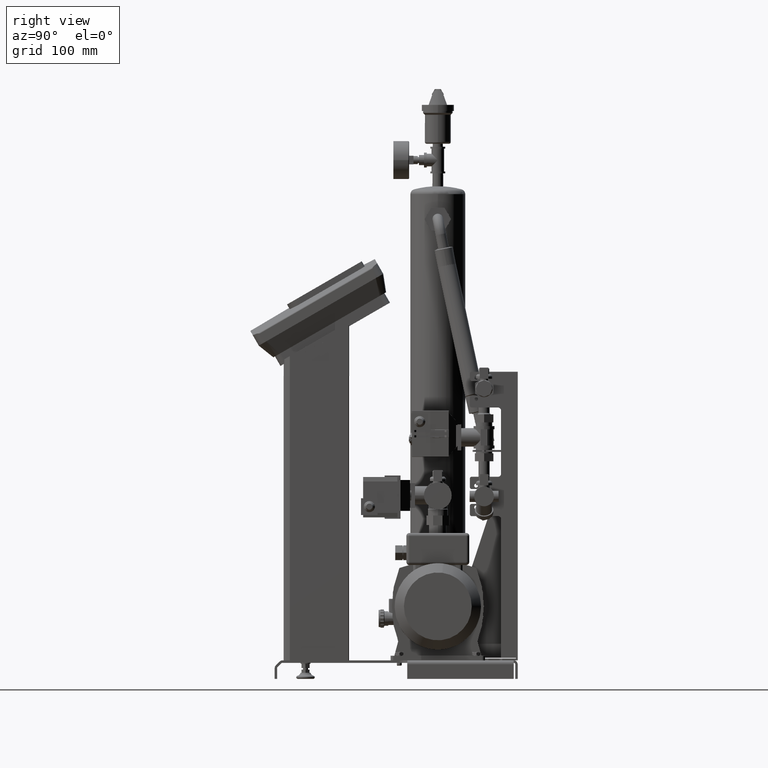
[diagram: clean part render]
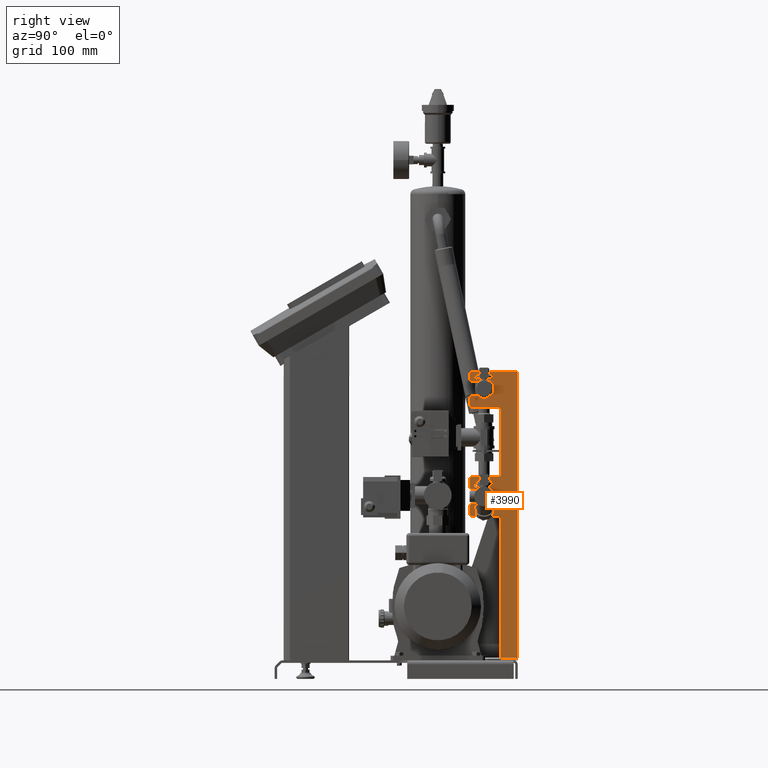
[diagram: same view with one face highlighted and labeled with its STEP entity id]
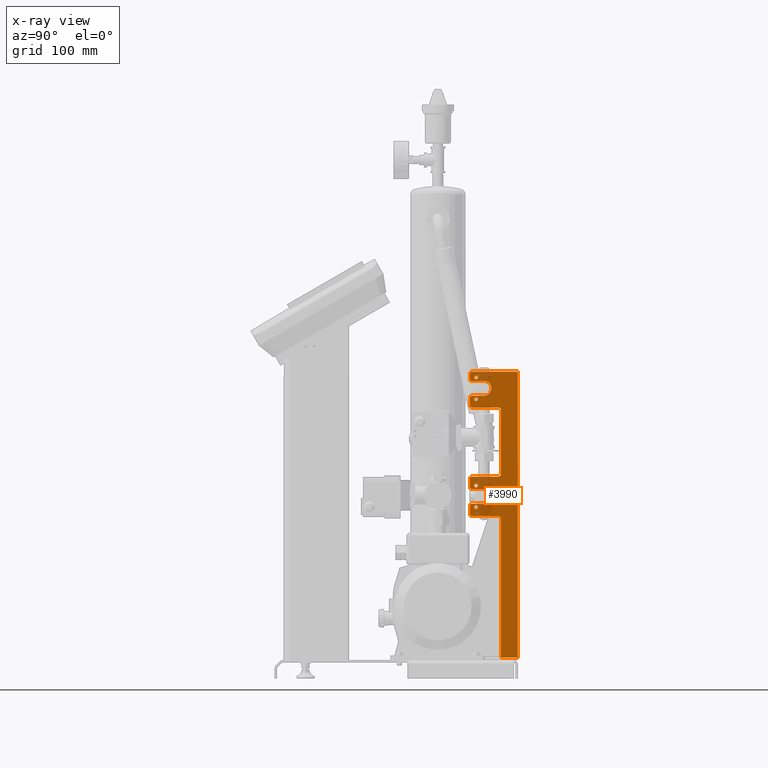
[diagram: x-ray of the same camera — body ghosted, the highlighted face saturated]
A machine part, right view. The second image highlights one B-rep face of the part: STEP entity #3990.
The next image is the same camera in x-ray: the body ghosted, the highlighted face saturated — about 8% of this face is hidden behind the body in this view.
In plain terms, the highlighted face is a freeform B-spline surface patch.
Its self-contained STEP definition (entity closure, byte-faithful):
#2002=CARTESIAN_POINT('',(172.69937185532984,53.249999999446231,276.99999999985636));
#2003=VERTEX_POINT('',#2002);
#2012=CARTESIAN_POINT('',(172.69937185532984,47.249999999446459,276.99999999985636));
#2013=VERTEX_POINT('',#2012);
#2014=CARTESIAN_POINT('',(172.69937185532984,50.249999999446231,276.99999999985636));
#2015=DIRECTION('',(-1.0,0.0,0.0));
#2016=DIRECTION('',(0.0,1.0,0.0));
#2017=AXIS2_PLACEMENT_3D('',#2014,#2015,#2016);
#2018=CIRCLE('',#2017,3.0);
#2019=EDGE_CURVE('',#2013,#2003,#2018,.T.);
#2044=CARTESIAN_POINT('',(172.69937185532984,53.249999999367333,311.99999999985636));
#2045=VERTEX_POINT('',#2044);
#2054=CARTESIAN_POINT('',(172.69937185532984,47.249999999367333,311.99999999985636));
#2055=VERTEX_POINT('',#2054);
#2056=CARTESIAN_POINT('',(172.69937185532984,50.249999999367333,311.99999999985636));
#2057=DIRECTION('',(-1.0,0.0,0.0));
#2058=DIRECTION('',(0.0,1.0,0.0));
#2059=AXIS2_PLACEMENT_3D('',#2056,#2057,#2058);
#2060=CIRCLE('',#2059,3.0);
#2061=EDGE_CURVE('',#2055,#2045,#2060,.T.);
#2086=CARTESIAN_POINT('',(172.69937185532984,53.249999999051283,451.99999999985636));
#2087=VERTEX_POINT('',#2086);
#2096=CARTESIAN_POINT('',(172.69937185532984,47.249999999051283,451.99999999985636));
#2097=VERTEX_POINT('',#2096);
#2098=CARTESIAN_POINT('',(172.69937185532984,50.249999999051283,451.99999999985636));
#2099=DIRECTION('',(-1.0,0.0,0.0));
#2100=DIRECTION('',(0.0,1.0,0.0));
#2101=AXIS2_PLACEMENT_3D('',#2098,#2099,#2100);
#2102=CIRCLE('',#2101,3.0);
#2103=EDGE_CURVE('',#2097,#2087,#2102,.T.);
#2128=CARTESIAN_POINT('',(172.69937185532984,53.249999998972157,486.99999999985636));
#2129=VERTEX_POINT('',#2128);
#2138=CARTESIAN_POINT('',(172.69937185532984,47.249999998972157,486.99999999985636));
#2139=VERTEX_POINT('',#2138);
#2140=CARTESIAN_POINT('',(172.69937185532984,50.249999998972157,486.99999999985636));
#2141=DIRECTION('',(-1.0,0.0,0.0));
#2142=DIRECTION('',(0.0,1.0,0.0));
#2143=AXIS2_PLACEMENT_3D('',#2140,#2141,#2142);
#2144=CIRCLE('',#2143,3.0);
#2145=EDGE_CURVE('',#2139,#2129,#2144,.T.);
#2915=CARTESIAN_POINT('',(172.69937185532984,50.249999998972157,486.99999999985636));
#2916=DIRECTION('',(-1.0,0.0,0.0));
#2917=DIRECTION('',(0.0,1.0,0.0));
#2918=AXIS2_PLACEMENT_3D('',#2915,#2916,#2917);
#2919=CIRCLE('',#2918,3.0);
#2920=EDGE_CURVE('',#2129,#2139,#2919,.T.);
#2939=CARTESIAN_POINT('',(172.69937185532984,50.249999999051283,451.99999999985636));
#2940=DIRECTION('',(-1.0,0.0,0.0));
#2941=DIRECTION('',(0.0,1.0,0.0));
#2942=AXIS2_PLACEMENT_3D('',#2939,#2940,#2941);
#2943=CIRCLE('',#2942,3.0);
#2944=EDGE_CURVE('',#2087,#2097,#2943,.T.);
#2963=CARTESIAN_POINT('',(172.69937185532984,50.249999999367333,311.99999999985636));
#2964=DIRECTION('',(-1.0,0.0,0.0));
#2965=DIRECTION('',(0.0,1.0,0.0));
#2966=AXIS2_PLACEMENT_3D('',#2963,#2964,#2965);
#2967=CIRCLE('',#2966,3.0);
#2968=EDGE_CURVE('',#2045,#2055,#2967,.T.);
#2987=CARTESIAN_POINT('',(172.69937185532984,50.249999999446231,276.99999999985636));
#2988=DIRECTION('',(-1.0,0.0,0.0));
#2989=DIRECTION('',(0.0,1.0,0.0));
#2990=AXIS2_PLACEMENT_3D('',#2987,#2988,#2989);
#2991=CIRCLE('',#2990,3.0);
#2992=EDGE_CURVE('',#2003,#2013,#2991,.T.);
#3002=CARTESIAN_POINT('',(172.69937185532984,85.749999999478973,262.49999999993651));
#3003=VERTEX_POINT('',#3002);
#3004=CARTESIAN_POINT('',(172.69937185532984,43.249999999478973,262.49999999984055));
#3005=VERTEX_POINT('',#3004);
#3006=CARTESIAN_POINT('',(172.69937185532984,85.749999999478973,262.49999999993651));
#3007=DIRECTION('',(0.0,-1.0,-2.256349E-012));
#3008=VECTOR('',#3007,42.5);
#3009=LINE('',#3006,#3008);
#3010=EDGE_CURVE('',#3003,#3005,#3009,.T.);
#3042=CARTESIAN_POINT('',(172.69937185532984,90.749999999490342,257.49999999994787));
#3043=VERTEX_POINT('',#3042);
#3044=CARTESIAN_POINT('',(172.69937185532984,85.749999999490342,257.49999999993651));
#3045=DIRECTION('',(1.0,1.383515E-028,-6.123032E-017));
#3046=DIRECTION('',(-6.123032E-017,2.259526E-012,-1.0));
#3047=AXIS2_PLACEMENT_3D('',#3044,#3045,#3046);
#3048=CIRCLE('',#3047,4.999999999999943);
#3049=EDGE_CURVE('',#3043,#3003,#3048,.T.);
#3075=CARTESIAN_POINT('',(172.69937185532984,90.74999999999784,32.749999999957751));
#3076=VERTEX_POINT('',#3075);
#3077=CARTESIAN_POINT('',(172.69937185532984,90.74999999999784,32.749999999957751));
#3078=DIRECTION('',(0.0,-2.258246E-012,1.0));
#3079=VECTOR('',#3078,224.74999999999011);
#3080=LINE('',#3077,#3079);
#3081=EDGE_CURVE('',#3076,#3043,#3080,.T.);
#3106=CARTESIAN_POINT('',(172.69937185534957,117.74999999896124,32.750000000011823));
#3107=VERTEX_POINT('',#3106);
#3108=CARTESIAN_POINT('',(172.6993718553299,90.74999999999784,32.750000000011823));
#3109=DIRECTION('',(0.0,1.0,0.0));
#3110=VECTOR('',#3109,26.999999998963403);
#3111=LINE('',#3108,#3110);
#3112=EDGE_CURVE('',#3076,#3107,#3111,.T.);
#3136=CARTESIAN_POINT('',(172.69937185532984,40.249999998956923,493.74999999983373));
#3137=VERTEX_POINT('',#3136);
#3138=CARTESIAN_POINT('',(172.69937185532984,43.249999998950102,496.7499999998405));
#3139=VERTEX_POINT('',#3138);
#3140=CARTESIAN_POINT('',(172.69937185532984,43.249999998956923,493.74999999984055));
#3141=DIRECTION('',(-1.0,1.836910E-016,4.176649E-028));
#3142=DIRECTION('',(-1.836910E-016,-1.0,-2.273737E-012));
#3143=AXIS2_PLACEMENT_3D('',#3140,#3141,#3142);
#3144=CIRCLE('',#3143,3.0);
#3145=EDGE_CURVE('',#3137,#3139,#3144,.T.);
#3178=CARTESIAN_POINT('',(172.69937185532984,40.249999998977842,484.49999999983373));
#3179=VERTEX_POINT('',#3178);
#3180=CARTESIAN_POINT('',(172.69937185532984,40.249999998977842,484.49999999983373));
#3181=DIRECTION('',(0.0,-2.258374E-012,1.0));
#3182=VECTOR('',#3181,9.249999999999943);
#3183=LINE('',#3180,#3182);
#3184=EDGE_CURVE('',#3179,#3137,#3183,.T.);
#3209=CARTESIAN_POINT('',(172.69937185532984,43.249999998984663,481.49999999984061));
#3210=VERTEX_POINT('',#3209);
#3211=CARTESIAN_POINT('',(172.69937185532984,43.249999998977842,484.49999999984055));
#3212=DIRECTION('',(-1.0,-1.392216E-028,6.123032E-017));
#3213=DIRECTION('',(-6.123032E-017,2.273737E-012,-1.0));
#3214=AXIS2_PLACEMENT_3D('',#3211,#3212,#3213);
#3215=CIRCLE('',#3214,3.0);
#3216=EDGE_CURVE('',#3210,#3179,#3215,.T.);
#3242=CARTESIAN_POINT('',(172.69937185532984,63.249999998984663,481.49999999988563));
#3243=VERTEX_POINT('',#3242);
#3244=CARTESIAN_POINT('',(172.69937185532984,63.249999998984663,481.49999999988563));
#3245=DIRECTION('',(0.0,-1.0,-2.250999E-012));
#3246=VECTOR('',#3245,20.0);
#3247=LINE('',#3244,#3246);
#3248=EDGE_CURVE('',#3243,#3210,#3247,.T.);
#3273=CARTESIAN_POINT('',(172.69937185532984,63.249999999039005,457.49999999988574));
#3274=VERTEX_POINT('',#3273);
#3275=CARTESIAN_POINT('',(172.69937185532984,63.24999999901172,469.49999999988569));
#3276=DIRECTION('',(1.0,1.381340E-028,-6.123032E-017));
#3277=DIRECTION('',(-6.123032E-017,2.255973E-012,-1.0));
#3278=AXIS2_PLACEMENT_3D('',#3275,#3276,#3277);
#3279=CIRCLE('',#3278,12.000000000000002);
#3280=EDGE_CURVE('',#3274,#3243,#3279,.T.);
#3306=CARTESIAN_POINT('',(172.69937185532984,43.249999999038778,457.49999999984055));
#3307=VERTEX_POINT('',#3306);
#3308=CARTESIAN_POINT('',(172.69937185532984,43.249999999038778,457.49999999984055));
#3309=DIRECTION('',(0.0,1.0,2.259526E-012));
#3310=VECTOR('',#3309,20.000000000000227);
#3311=LINE('',#3308,#3310);
#3312=EDGE_CURVE('',#3307,#3274,#3311,.T.);
#3337=CARTESIAN_POINT('',(172.69937185532984,40.249999999045599,454.49999999983373));
#3338=VERTEX_POINT('',#3337);
#3339=CARTESIAN_POINT('',(172.69937185532984,43.249999999045599,454.49999999984067));
#3340=DIRECTION('',(-1.0,1.836910E-016,4.220155E-028));
#3341=DIRECTION('',(-1.836910E-016,-1.0,-2.297422E-012));
#3342=AXIS2_PLACEMENT_3D('',#3339,#3340,#3341);
#3343=CIRCLE('',#3342,3.0);
#3344=EDGE_CURVE('',#3338,#3307,#3343,.T.);
#3370=CARTESIAN_POINT('',(172.69937185532984,40.249999999074248,441.74999999983368));
#3371=VERTEX_POINT('',#3370);
#3372=CARTESIAN_POINT('',(172.69937185532984,40.249999999074248,441.74999999983368));
#3373=DIRECTION('',(0.0,-2.257018E-012,1.0));
#3374=VECTOR('',#3373,12.750000000000057);
#3375=LINE('',#3372,#3374);
#3376=EDGE_CURVE('',#3371,#3338,#3375,.T.);
#3401=CARTESIAN_POINT('',(172.69937185532984,43.249999999081069,438.74999999984055));
#3402=VERTEX_POINT('',#3401);
#3403=CARTESIAN_POINT('',(172.69937185532984,43.249999999074248,441.7499999998405));
#3404=DIRECTION('',(-1.0,-1.377714E-028,6.123032E-017));
#3405=DIRECTION('',(-6.123032E-017,2.250052E-012,-1.0));
#3406=AXIS2_PLACEMENT_3D('',#3403,#3404,#3405);
#3407=CIRCLE('',#3406,3.0);
#3408=EDGE_CURVE('',#3402,#3371,#3407,.T.);
#3434=CARTESIAN_POINT('',(172.69937185532984,85.749999999081069,438.74999999993645));
#3435=VERTEX_POINT('',#3434);
#3436=CARTESIAN_POINT('',(172.69937185532984,85.749999999081069,438.74999999993645));
#3437=DIRECTION('',(0.0,-1.0,-2.257687E-012));
#3438=VECTOR('',#3437,42.499999999999929);
#3439=LINE('',#3436,#3438);
#3440=EDGE_CURVE('',#3435,#3402,#3439,.T.);
#3465=CARTESIAN_POINT('',(172.69937185532984,90.749999999092438,433.74999999994776));
#3466=VERTEX_POINT('',#3465);
#3467=CARTESIAN_POINT('',(172.69937185532984,85.749999999092438,433.74999999993645));
#3468=DIRECTION('',(1.0,1.392216E-028,-6.123032E-017));
#3469=DIRECTION('',(-6.123032E-017,2.273737E-012,-1.0));
#3470=AXIS2_PLACEMENT_3D('',#3467,#3468,#3469);
#3471=CIRCLE('',#3470,5.0);
#3472=EDGE_CURVE('',#3466,#3435,#3471,.T.);
#3498=CARTESIAN_POINT('',(172.69937185532984,90.749999999323222,331.49999999994787));
#3499=VERTEX_POINT('',#3498);
#3500=CARTESIAN_POINT('',(172.69937185532984,90.749999999323222,331.49999999994787));
#3501=DIRECTION('',(0.0,-2.257059E-012,1.0));
#3502=VECTOR('',#3501,102.24999999999989);
#3503=LINE('',#3500,#3502);
#3504=EDGE_CURVE('',#3499,#3466,#3503,.T.);
#3529=CARTESIAN_POINT('',(172.69937185532984,85.749999999334591,326.49999999993651));
#3530=VERTEX_POINT('',#3529);
#3531=CARTESIAN_POINT('',(172.69937185532984,85.749999999323222,331.49999999993651));
#3532=DIRECTION('',(1.0,-1.836910E-016,-4.176649E-028));
#3533=DIRECTION('',(-1.836910E-016,-1.0,-2.273737E-012));
#3534=AXIS2_PLACEMENT_3D('',#3531,#3532,#3533);
#3535=CIRCLE('',#3534,5.0);
#3536=EDGE_CURVE('',#3530,#3499,#3535,.T.);
#3562=CARTESIAN_POINT('',(172.69937185532984,43.249999999334591,326.49999999984055));
#3563=VERTEX_POINT('',#3562);
#3564=CARTESIAN_POINT('',(172.69937185532984,43.249999999334591,326.49999999984055));
#3565=DIRECTION('',(0.0,1.0,2.256349E-012));
#3566=VECTOR('',#3565,42.5);
#3567=LINE('',#3564,#3566);
#3568=EDGE_CURVE('',#3563,#3530,#3567,.T.);
#3593=CARTESIAN_POINT('',(172.69937185532984,40.249999999341412,323.49999999983373));
#3594=VERTEX_POINT('',#3593);
#3595=CARTESIAN_POINT('',(172.69937185532984,43.249999999341412,323.49999999984055));
#3596=DIRECTION('',(-1.0,1.836910E-016,4.176649E-028));
#3597=DIRECTION('',(-1.836910E-016,-1.0,-2.273737E-012));
#3598=AXIS2_PLACEMENT_3D('',#3595,#3596,#3597);
#3599=CIRCLE('',#3598,3.0);
#3600=EDGE_CURVE('',#3594,#3563,#3599,.T.);
#3626=CARTESIAN_POINT('',(172.69937185532984,40.249999999373017,309.49999999983373));
#3627=VERTEX_POINT('',#3626);
#3628=CARTESIAN_POINT('',(172.69937185532984,40.249999999373017,309.49999999983373));
#3629=DIRECTION('',(0.0,-2.263586E-012,1.0));
#3630=VECTOR('',#3629,14.0);
#3631=LINE('',#3628,#3630);
#3632=EDGE_CURVE('',#3627,#3594,#3631,.T.);
#3657=CARTESIAN_POINT('',(172.69937185532984,43.249999999379611,306.49999999984055));
#3658=VERTEX_POINT('',#3657);
#3659=CARTESIAN_POINT('',(172.69937185532984,43.249999999373017,309.49999999984055));
#3660=DIRECTION('',(-1.0,-1.377714E-028,6.123032E-017));
#3661=DIRECTION('',(-6.123032E-017,2.250052E-012,-1.0));
#3662=AXIS2_PLACEMENT_3D('',#3659,#3660,#3661);
#3663=CIRCLE('',#3662,3.0);
#3664=EDGE_CURVE('',#3658,#3627,#3663,.T.);
#3690=CARTESIAN_POINT('',(172.69937185532984,63.249999999379611,306.4999999998858));
#3691=VERTEX_POINT('',#3690);
#3692=CARTESIAN_POINT('',(172.69937185532984,63.249999999379611,306.4999999998858));
#3693=DIRECTION('',(0.0,-1.0,-2.262368E-012));
#3694=VECTOR('',#3693,19.999999999999787);
#3695=LINE('',#3692,#3694);
#3696=EDGE_CURVE('',#3691,#3658,#3695,.T.);
#3721=CARTESIAN_POINT('',(172.69937185532984,63.249999999433953,282.4999999998858));
#3722=VERTEX_POINT('',#3721);
#3723=CARTESIAN_POINT('',(172.69937185532984,63.249999999406896,294.4999999998858));
#3724=DIRECTION('',(1.0,1.392216E-028,-6.123032E-017));
#3725=DIRECTION('',(-6.123032E-017,2.273737E-012,-1.0));
#3726=AXIS2_PLACEMENT_3D('',#3723,#3724,#3725);
#3727=CIRCLE('',#3726,12.000000000000002);
#3728=EDGE_CURVE('',#3722,#3691,#3727,.T.);
#3754=CARTESIAN_POINT('',(172.69937185532984,43.249999999433953,282.49999999984055));
#3755=VERTEX_POINT('',#3754);
#3756=CARTESIAN_POINT('',(172.69937185532984,43.249999999433953,282.49999999984055));
#3757=DIRECTION('',(0.0,1.0,2.262368E-012));
#3758=VECTOR('',#3757,20.0);
#3759=LINE('',#3756,#3758);
#3760=EDGE_CURVE('',#3755,#3722,#3759,.T.);
#3785=CARTESIAN_POINT('',(172.69937185532984,40.249999999440774,279.49999999983373));
#3786=VERTEX_POINT('',#3785);
#3787=CARTESIAN_POINT('',(172.69937185532984,43.249999999440774,279.49999999984055));
#3788=DIRECTION('',(-1.0,1.836910E-016,4.176649E-028));
#3789=DIRECTION('',(-1.836910E-016,-1.0,-2.273737E-012));
#3790=AXIS2_PLACEMENT_3D('',#3787,#3788,#3789);
#3791=CIRCLE('',#3790,3.0);
#3792=EDGE_CURVE('',#3786,#3755,#3791,.T.);
#3818=CARTESIAN_POINT('',(172.69937185532984,40.24999999947579,265.49999999983373));
#3819=VERTEX_POINT('',#3818);
#3820=CARTESIAN_POINT('',(172.69937185532984,40.24999999947579,265.49999999983373));
#3821=DIRECTION('',(0.0,-2.497050E-012,1.0));
#3822=VECTOR('',#3821,14.0);
#3823=LINE('',#3820,#3822);
#3824=EDGE_CURVE('',#3819,#3786,#3823,.T.);
#3849=CARTESIAN_POINT('',(172.69937185532984,43.24999999947579,265.49999999984055));
#3850=DIRECTION('',(-1.0,-6.526014E-029,6.123032E-017));
#3851=DIRECTION('',(-6.123032E-017,1.065814E-012,-1.0));
#3852=AXIS2_PLACEMENT_3D('',#3849,#3850,#3851);
#3853=CIRCLE('',#3852,3.0);
#3854=EDGE_CURVE('',#3005,#3819,#3853,.T.);
#3926=CARTESIAN_POINT('',(172.69937185532996,40.249999998956923,496.7500000000087));
#3927=CARTESIAN_POINT('',(172.69937185532996,117.74999999896136,496.7500000000087));
#3928=CARTESIAN_POINT('',(172.6993718553299,40.249999998956923,32.749999999957765));
#3929=CARTESIAN_POINT('',(172.6993718553299,117.74999999896136,32.749999999957765));
#3930=B_SPLINE_SURFACE_WITH_KNOTS('',1,1,((#3926,#3928),(#3927,#3929)),.UNSPECIFIED.,.F.,.F.,.U.,(2,2),(2,2),(0.0,77.500000000004434),(0.0,464.00000000005093),.UNSPECIFIED.);
#3931=ORIENTED_EDGE('',*,*,#3112,.T.);
#3932=CARTESIAN_POINT('',(172.69937185532996,117.74999999896136,496.7500000000087));
#3933=VERTEX_POINT('',#3932);
#3934=CARTESIAN_POINT('',(172.6993718553299,117.74999999896136,32.750000000011823));
#3935=DIRECTION('',(0.0,0.0,1.0));
#3936=VECTOR('',#3935,463.99999999999687);
#3937=LINE('',#3934,#3936);
#3938=EDGE_CURVE('',#3107,#3933,#3937,.T.);
#3939=ORIENTED_EDGE('',*,*,#3938,.T.);
#3940=CARTESIAN_POINT('',(172.69937185532996,43.249999998950102,496.7500000000087));
#3941=DIRECTION('',(0.0,1.0,0.0));
#3942=VECTOR('',#3941,74.500000000011255);
#3943=LINE('',#3940,#3942);
#3944=EDGE_CURVE('',#3139,#3933,#3943,.T.);
#3945=ORIENTED_EDGE('',*,*,#3944,.F.);
#3946=ORIENTED_EDGE('',*,*,#3145,.F.);
#3947=ORIENTED_EDGE('',*,*,#3184,.F.);
#3948=ORIENTED_EDGE('',*,*,#3216,.F.);
#3949=ORIENTED_EDGE('',*,*,#3248,.F.);
#3950=ORIENTED_EDGE('',*,*,#3280,.F.);
#3951=ORIENTED_EDGE('',*,*,#3312,.F.);
#3952=ORIENTED_EDGE('',*,*,#3344,.F.);
#3953=ORIENTED_EDGE('',*,*,#3376,.F.);
#3954=ORIENTED_EDGE('',*,*,#3408,.F.);
#3955=ORIENTED_EDGE('',*,*,#3440,.F.);
#3956=ORIENTED_EDGE('',*,*,#3472,.F.);
#3957=ORIENTED_EDGE('',*,*,#3504,.F.);
#3958=ORIENTED_EDGE('',*,*,#3536,.F.);
#3959=ORIENTED_EDGE('',*,*,#3568,.F.);
#3960=ORIENTED_EDGE('',*,*,#3600,.F.);
#3961=ORIENTED_EDGE('',*,*,#3632,.F.);
#3962=ORIENTED_EDGE('',*,*,#3664,.F.);
#3963=ORIENTED_EDGE('',*,*,#3696,.F.);
#3964=ORIENTED_EDGE('',*,*,#3728,.F.);
#3965=ORIENTED_EDGE('',*,*,#3760,.F.);
#3966=ORIENTED_EDGE('',*,*,#3792,.F.);
#3967=ORIENTED_EDGE('',*,*,#3824,.F.);
#3968=ORIENTED_EDGE('',*,*,#3854,.F.);
#3969=ORIENTED_EDGE('',*,*,#3010,.F.);
#3970=ORIENTED_EDGE('',*,*,#3049,.F.);
#3971=ORIENTED_EDGE('',*,*,#3081,.F.);
#3972=EDGE_LOOP('',(#3931,#3939,#3945,#3946,#3947,#3948,#3949,#3950,#3951,#3952,#3953,#3954,#3955,#3956,#3957,#3958,#3959,#3960,#3961,#3962,#3963,#3964,#3965,#3966,#3967,#3968,#3969,#3970,#3971));
#3973=FACE_OUTER_BOUND('',#3972,.T.);
#3974=ORIENTED_EDGE('',*,*,#2145,.T.);
#3975=ORIENTED_EDGE('',*,*,#2920,.T.);
#3976=EDGE_LOOP('',(#3974,#3975));
#3977=FACE_BOUND('',#3976,.T.);
#3978=ORIENTED_EDGE('',*,*,#2103,.T.);
#3979=ORIENTED_EDGE('',*,*,#2944,.T.);
#3980=EDGE_LOOP('',(#3978,#3979));
#3981=FACE_BOUND('',#3980,.T.);
#3982=ORIENTED_EDGE('',*,*,#2061,.T.);
#3983=ORIENTED_EDGE('',*,*,#2968,.T.);
#3984=EDGE_LOOP('',(#3982,#3983));
#3985=FACE_BOUND('',#3984,.T.);
#3986=ORIENTED_EDGE('',*,*,#2019,.T.);
#3987=ORIENTED_EDGE('',*,*,#2992,.T.);
#3988=EDGE_LOOP('',(#3986,#3987));
#3989=FACE_BOUND('',#3988,.T.);
#3990=ADVANCED_FACE('',(#3973,#3977,#3981,#3985,#3989),#3930,.F.);